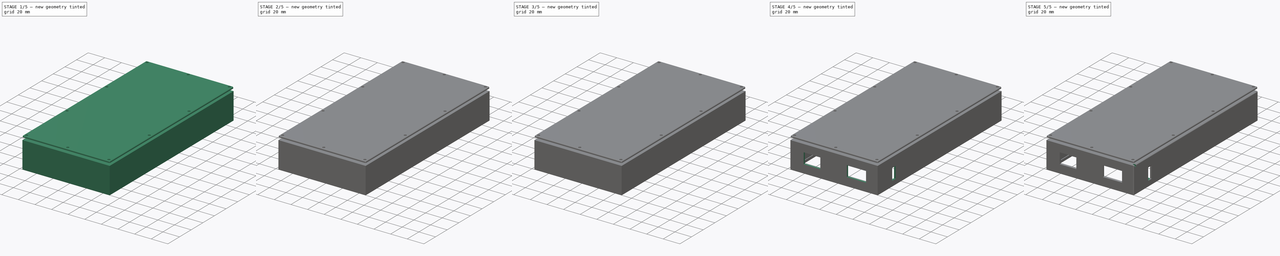
[diagram: build sequence overview — one tinted view per stage of 5, left to right]
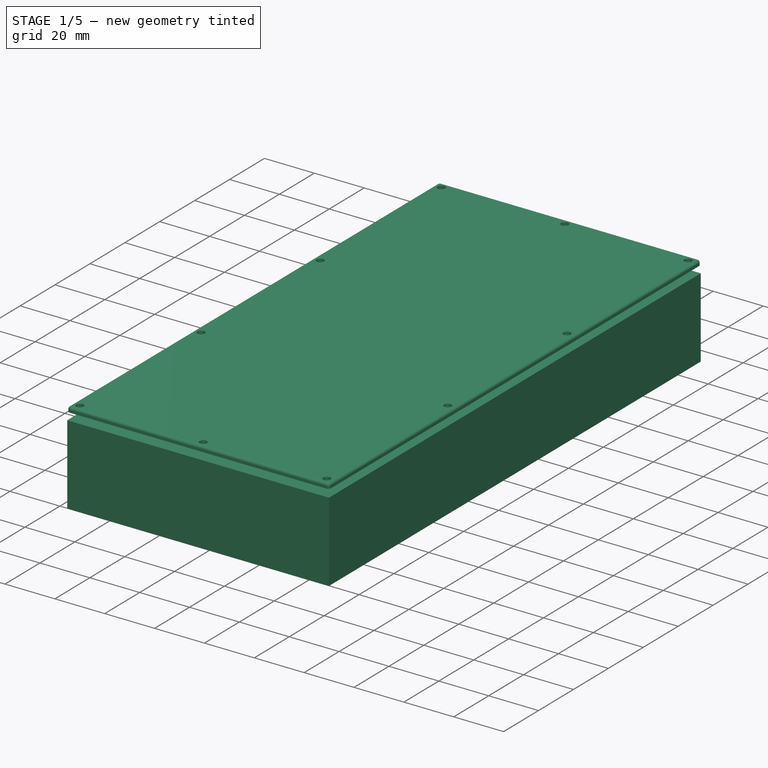
[diagram: stage 1 of 5 — iso view after this stage's code; geometry added in this stage tinted green]
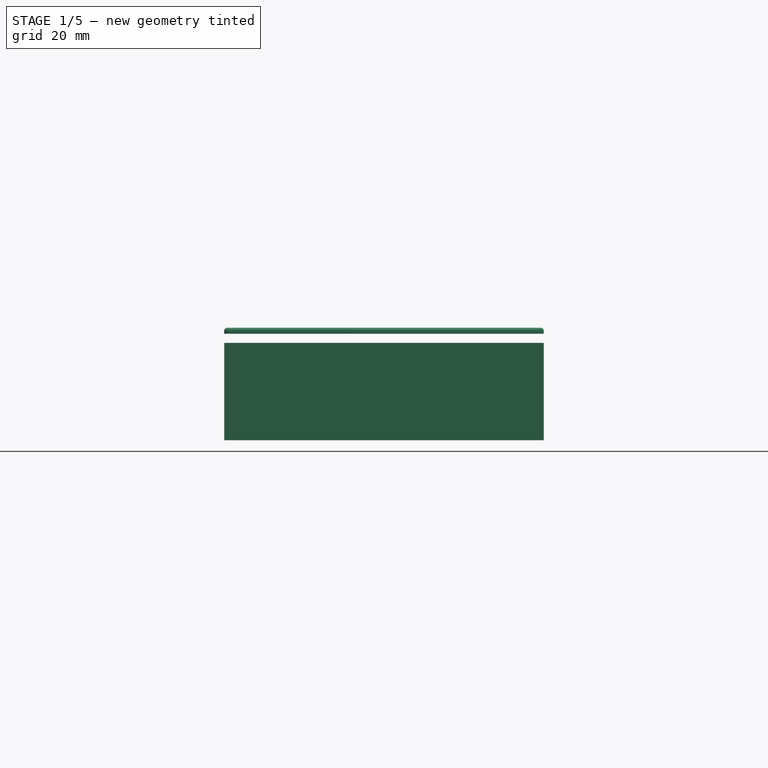
[diagram: stage 1 of 5 — front view after this stage's code; geometry added in this stage tinted green]
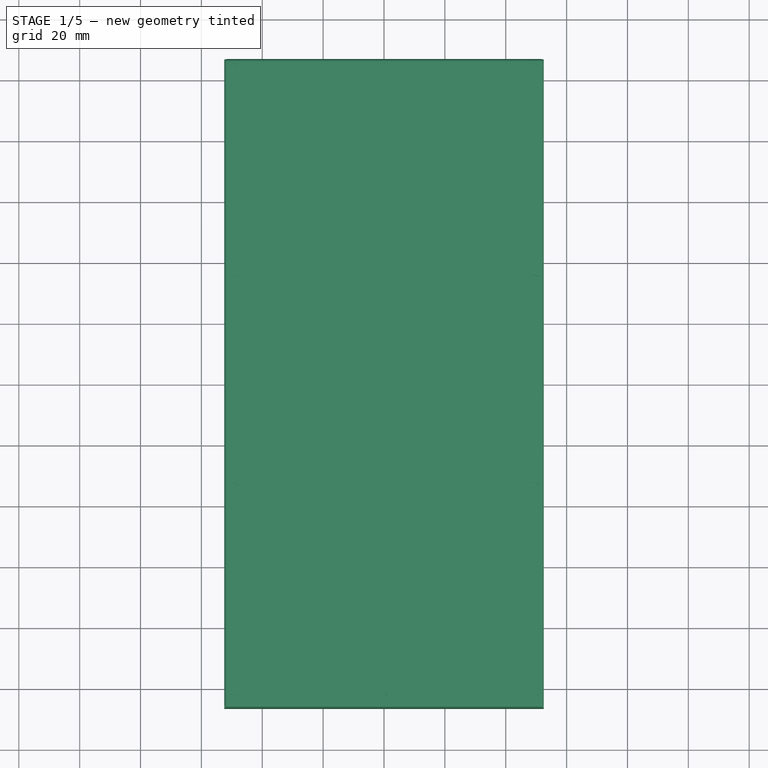
[diagram: stage 1 of 5 — top view after this stage's code; geometry added in this stage tinted green]
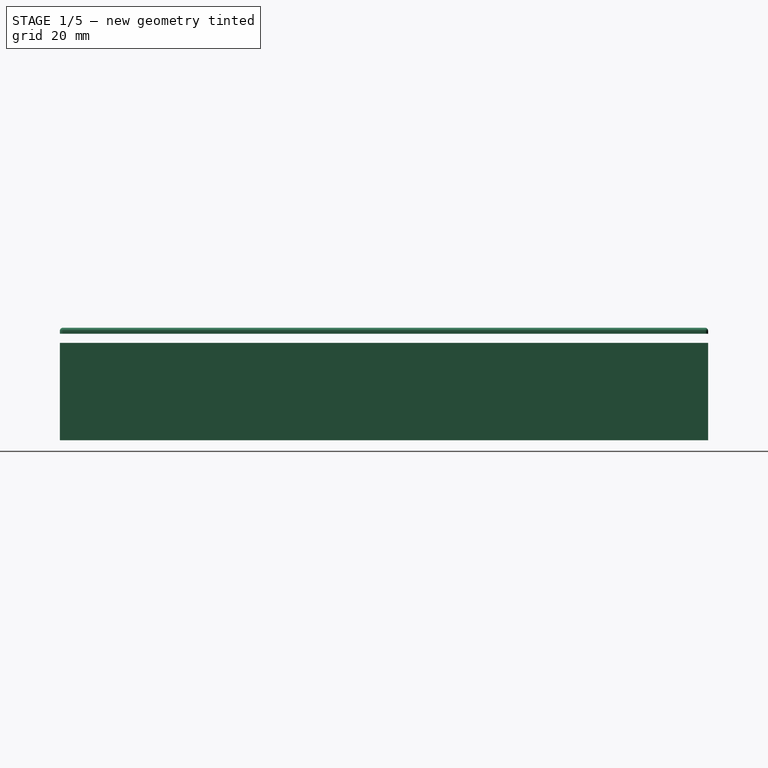
[diagram: stage 1 of 5 — right view after this stage's code; geometry added in this stage tinted green]
FCSTD DOCUMENT  (FreeCAD 1.0R39109 (Git))
Label: FIN 002
License: All rights reserved
LicenseURL: http://en.wikipedia.org/wiki/All_rights_reserved
objects: Sketcher::SketchObject×14, PartDesign::Pad×8, PartDesign::Fillet×7, PartDesign::Pocket×5, PartDesign::Mirrored×3, PartDesign::Body×3, App::Part×3, PartDesign::Hole×1
note: 100 computed .brp shape members not serialized (recipe doc carries the construction recipe); baked Part::Feature solids carry a one-line shape summary decoded from their .brp

FEATURE [Sketcher::SketchObject] Sketch
  ArcFitTolerance = 0
  AttachmentSupport = -> [XY_Plane]
  FullyConstrained = true
  MakeInternals = false
  MapMode = 5
  sketch-geometry (4):
    g0: LineSegment StartX=-52.5 StartY=106.5 StartZ=0 EndX=52.5 EndY=106.5 EndZ=0
    g1: LineSegment StartX=52.5 StartY=106.5 StartZ=0 EndX=52.5 EndY=-106.5 EndZ=0
    g2: LineSegment StartX=52.5 StartY=-106.5 StartZ=0 EndX=-52.5 EndY=-106.5 EndZ=0
    g3: LineSegment StartX=-52.5 StartY=-106.5 StartZ=0 EndX=-52.5 EndY=106.5 EndZ=0
  constraints (10):
    c: Coincident(g0,g1)
    c: Coincident(g1,g2)
    c: Coincident(g2,g3)
    c: Coincident(g3,g0)
    c: Horizontal(g2)
    c: Vertical(g3)
    c: Symmetric(g0,g0,g-2)
    c: Symmetric(g0,g1,g-1)
    c: DistanceX(g0,g0) = 105
    c: DistanceY(g3,g3) = 213
FEATURE [PartDesign::Pad] Pad
  AlongSketchNormal = false
  Direction = (0,0,1)
  Length = 32
  Length2 = 100
  Profile = -> Sketch
  Suppressed = false
  Type = 0
FEATURE [PartDesign::Body] Body
  AllowCompound = false
  Group = -> [Sketch,Pad,Sketch001,Sketch002,Pocket001,Sketch003,Pad001,Mirrored,Sketch004,Pad002,Mirrored001,Fillet,Fillet001,Fillet002,Sketch005,Pad003,Sketch006,Pocket002,Mirrored002,Fillet003,Sketch007,Pocket003,Sketch008,Pocket004,Sketch009,Pad004,Sketch010,Pad005,Fillet005,Sketch012,Pocket005,Hole]
  Origin = -> Origin001
  Tip = -> Hole
FEATURE [App::Part] Part  label="Main"
  Group = -> [Body]
  Origin = -> Origin
  Placement = pos=(-2.1e-15,0,35) rot=(0,1,0;3.14159rad)
FEATURE [Sketcher::SketchObject] Sketch013
  ArcFitTolerance = 0
  FullyConstrained = true
  MakeInternals = false
  MapMode = 5
  Placement = pos=(-4e-16,0,3) rot=(1,0,0;3.14159rad)
  sketch-geometry (8):
    g0: LineSegment StartX=-49.5 StartY=103.5 StartZ=0 EndX=49.5 EndY=103.5 EndZ=0
    g1: LineSegment StartX=49.5 StartY=103.5 StartZ=0 EndX=49.5 EndY=-103.5 EndZ=0
    g2: LineSegment StartX=49.5 StartY=-103.5 StartZ=0 EndX=-49.5 EndY=-103.5 EndZ=0
    g3: LineSegment StartX=-49.5 StartY=-103.5 StartZ=0 EndX=-49.5 EndY=103.5 EndZ=0
    g4: LineSegment StartX=-52.5 StartY=106.5 StartZ=0 EndX=52.5 EndY=106.5 EndZ=0
    g5: LineSegment StartX=52.5 StartY=106.5 StartZ=0 EndX=52.5 EndY=-106.5 EndZ=0
    g6: LineSegment StartX=52.5 StartY=-106.5 StartZ=0 EndX=-52.5 EndY=-106.5 EndZ=0
    g7: LineSegment StartX=-52.5 StartY=-106.5 StartZ=0 EndX=-52.5 EndY=106.5 EndZ=0
  constraints (20):
    c: Coincident(g0,g1)
    c: Coincident(g1,g2)
    c: Coincident(g2,g3)
    c: Coincident(g3,g0)
    c: Horizontal(g2)
    c: Vertical(g3)
    c: Symmetric(g0,g0,g-2)
    c: Symmetric(g0,g1,g-1)
    c: DistanceY(g0,g-3) = 3
    c: DistanceX(g0,g-4) = 3
    c: Coincident(g4,g5)
    c: Coincident(g5,g6)
    c: Coincident(g6,g7)
    c: Coincident(g7,g4)
    c: Horizontal(g6)
    c: Vertical(g7)
    c: Symmetric(g4,g4,g-2)
    c: Symmetric(g4,g5,g-1)
    c: PointOnObject(g-3,g4)
    c: PointOnObject(g-4,g5)
FEATURE [PartDesign::Pad] Pad007
  AlongSketchNormal = false
  Direction = (1e-16,0,-1)
  Length = 3
  Length2 = 100
  Profile = -> Sketch013
  Suppressed = false
  Type = 0
FEATURE [PartDesign::Fillet] Fillet006
  Base = -> Pad007 [Edge8,Edge10,Edge12,Edge7,Edge4,Edge2,Edge1,Edge5]
  BaseFeature = -> Pad007
  Radius = 1
  SupportTransform = false
  Suppressed = false
  UseAllEdges = false
FEATURE [PartDesign::Body] Body002
  AllowCompound = false
  Group = -> [Sketch013,Pad007,Fillet006]
  Origin = -> Origin005
  Tip = -> Fillet006
FEATURE [App::Part] Part002  label="solar cover "
  Group = -> [Body002]
  Origin = -> Origin004
  Placement = pos=(0,0,-16) rot=(0,0,1;0rad)
FEATURE [Sketcher::SketchObject] Sketch014
  ArcFitTolerance = 0
  FullyConstrained = true
  MakeInternals = false
  MapMode = 5
  Placement = pos=(-4.3e-15,0,35) rot=(0,0,1;0rad)
  sketch-geometry (14):
    g0: LineSegment StartX=-52.5 StartY=106.5 StartZ=0 EndX=52.5 EndY=106.5 EndZ=0
    g1: LineSegment StartX=52.5 StartY=106.5 StartZ=0 EndX=52.5 EndY=-106.5 EndZ=0
    g2: LineSegment StartX=52.5 StartY=-106.5 StartZ=0 EndX=-52.5 EndY=-106.5 EndZ=0
    g3: LineSegment StartX=-52.5 StartY=-106.5 StartZ=0 EndX=-52.5 EndY=106.5 EndZ=0
    g4: Circle CenterX=-49.5 CenterY=103.5 CenterZ=0 NormalX=0 NormalY=0 NormalZ=1 AngleXU=0 Radius=1.45
    g5: Circle CenterX=2.2e-15 CenterY=103.5 CenterZ=0 NormalX=0 NormalY=0 NormalZ=1 AngleXU=0 Radius=1.45
    g6: Circle CenterX=49.5 CenterY=103.5 CenterZ=0 NormalX=0 NormalY=0 NormalZ=1 AngleXU=0 Radius=1.45
    g7: Circle CenterX=49.5 CenterY=34.1667 CenterZ=0 NormalX=0 NormalY=0 NormalZ=1 AngleXU=0 Radius=1.45
    g8: Circle CenterX=-49.5 CenterY=34.1667 CenterZ=0 NormalX=0 NormalY=0 NormalZ=1 AngleXU=0 Radius=1.45
    g9: Circle CenterX=-49.5 CenterY=-34.1667 CenterZ=0 NormalX=0 NormalY=0 NormalZ=1 AngleXU=0 Radius=1.45
    g10: Circle CenterX=49.5 CenterY=-34.1667 CenterZ=0 NormalX=0 NormalY=0 NormalZ=1 AngleXU=0 Radius=1.45
    g11: Circle CenterX=-49.5 CenterY=-103.5 CenterZ=0 NormalX=0 NormalY=0 NormalZ=1 AngleXU=0 Radius=1.45
    g12: Circle CenterX=2.2e-15 CenterY=-103.5 CenterZ=0 NormalX=0 NormalY=0 NormalZ=1 AngleXU=0 Radius=1.45
    g13: Circle CenterX=49.5 CenterY=-103.5 CenterZ=0 NormalX=0 NormalY=0 NormalZ=1 AngleXU=0 Radius=1.45
  constraints (32):
    c: Coincident(g0,g1)
    c: Coincident(g1,g2)
    c: Coincident(g2,g3)
    c: Coincident(g3,g0)
    c: Horizontal(g0)
    c: Horizontal(g2)
    c: Vertical(g1)
    c: Vertical(g3)
    c: PointOnObject(g-3,g0)
    c: PointOnObject(g-4,g3)
    c: PointOnObject(g-5,g1)
    c: PointOnObject(g-6,g2)
    c: Coincident(g4,g-7)
    c: Coincident(g5,g-9)
    c: Coincident(g6,g-8)
    c: Coincident(g7,g-11)
    c: Coincident(g8,g-10)
    c: Coincident(g9,g-12)
    c: Coincident(g10,g-13)
    c: Coincident(g11,g-14)
    c: Coincident(g12,g-15)
    c: Coincident(g13,g-16)
    c: Equal(g11,g12)
    c: Equal(g12,g13)
    c: Equal(g13,g10)
    c: Equal(g10,g9)
    c: Equal(g9,g8)
    c: Equal(g8,g7)
    c: Equal(g7,g6)
    c: Equal(g6,g5)
    c: Equal(g5,g4)
    c: Radius(g4) = 1.45
FEATURE [PartDesign::Pad] Pad008
  AlongSketchNormal = false
  Direction = (-1e-16,0,1)
  Length = 2
  Length2 = 100
  Profile = -> Sketch014
  Suppressed = false
  Type = 0
FEATURE [PartDesign::Fillet] Fillet007
  Base = -> Pad008 [Edge2,Edge1,Edge5,Edge8,Edge7,Edge4,Edge12,Edge10]
  BaseFeature = -> Pad008
  Radius = 1
  SupportTransform = false
  Suppressed = false
  UseAllEdges = false
FEATURE [PartDesign::Body] Body003
  AllowCompound = false
  Group = -> [Sketch014,Pad008,Fillet007]
  Origin = -> Origin007
  Tip = -> Fillet007
FEATURE [App::Part] Part003  label="main cover "
  Group = -> [Body003]
  Origin = -> Origin006
  Placement = pos=(0,0,35) rot=(0,0,1;0rad)
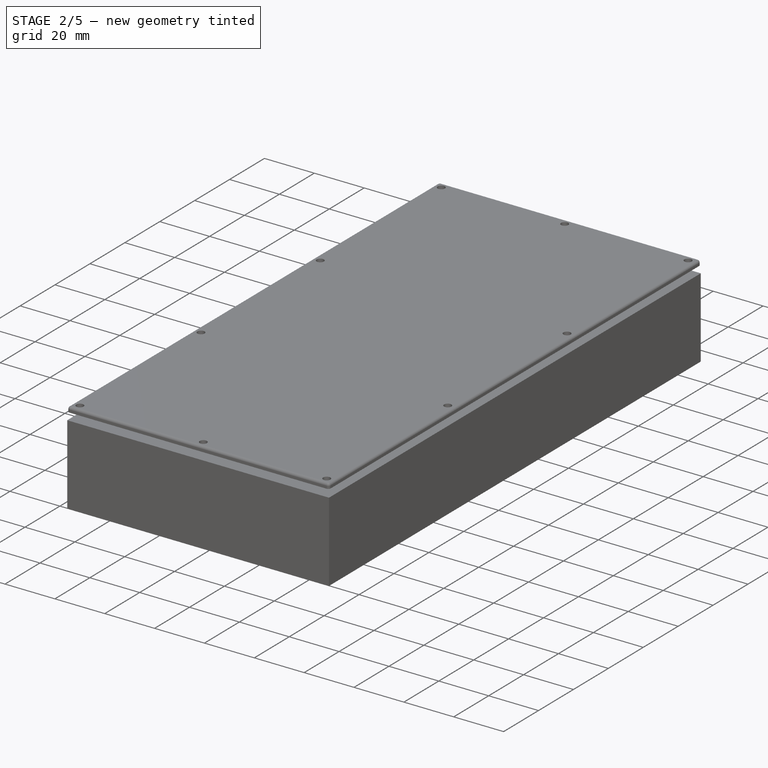
[diagram: stage 2 of 5 — iso view after this stage's code; geometry added in this stage tinted green]
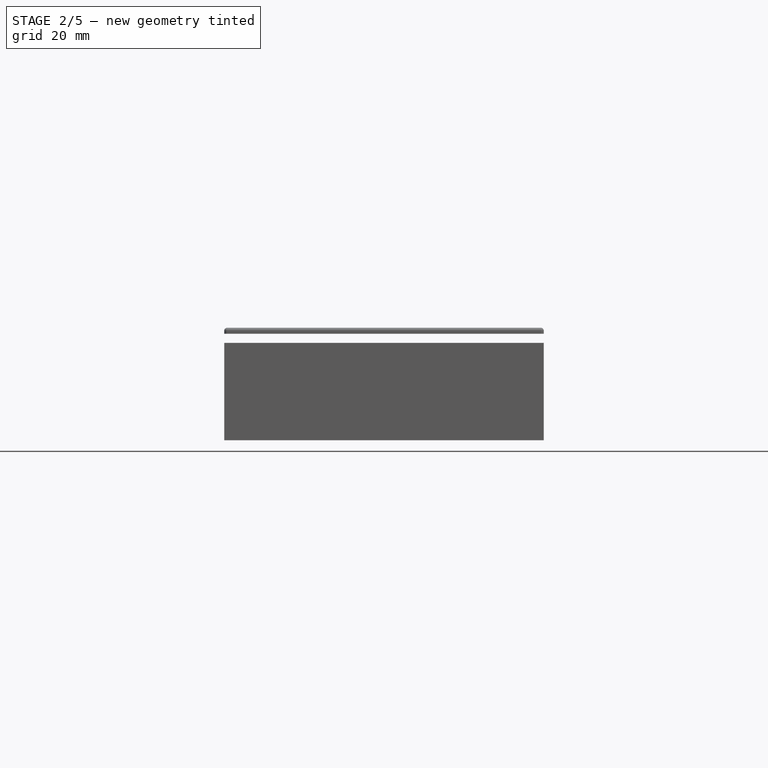
[diagram: stage 2 of 5 — front view after this stage's code; geometry added in this stage tinted green]
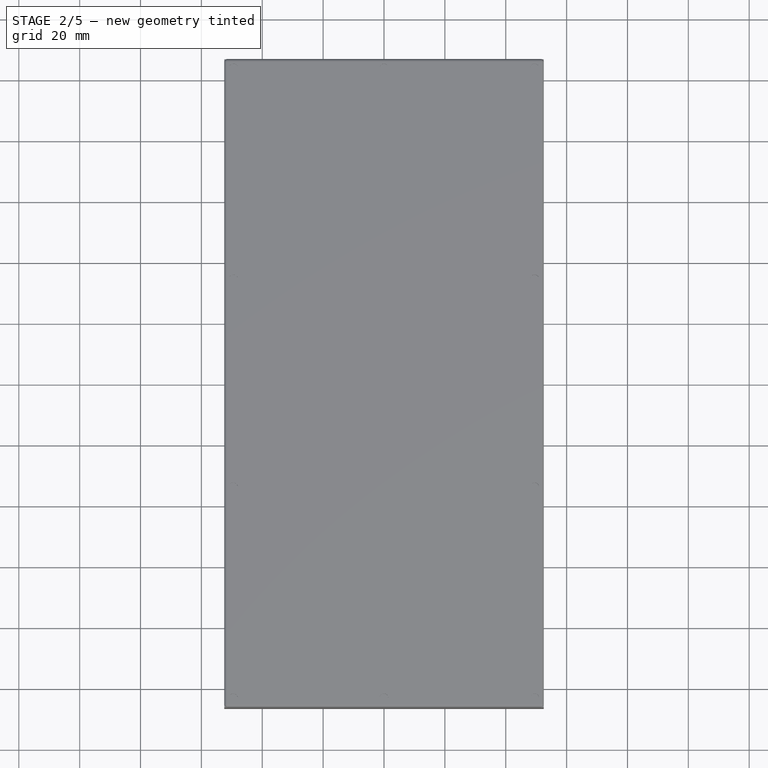
[diagram: stage 2 of 5 — top view after this stage's code; geometry added in this stage tinted green]
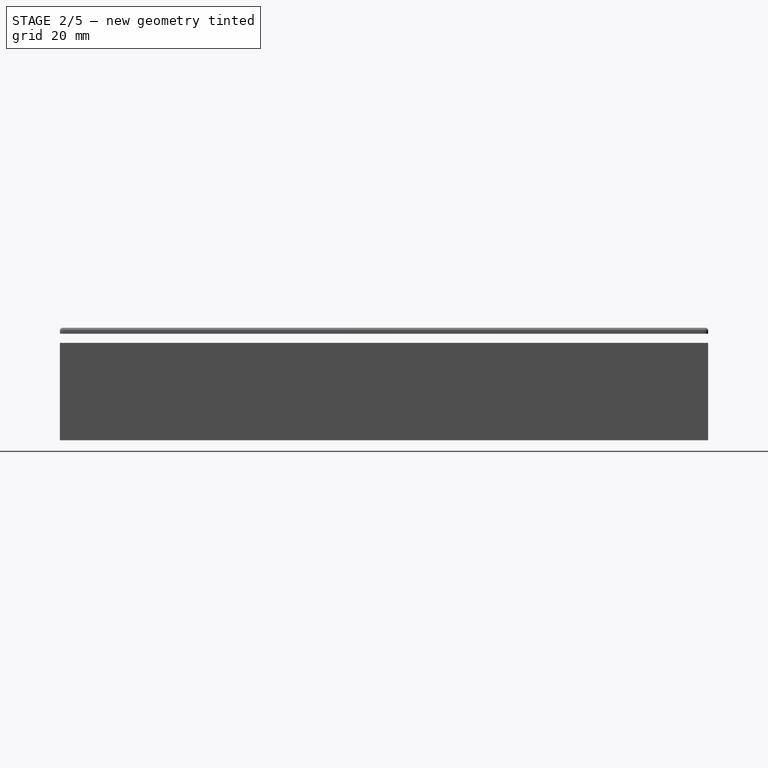
[diagram: stage 2 of 5 — right view after this stage's code; geometry added in this stage tinted green]
FEATURE [Sketcher::SketchObject] Sketch001
  ArcFitTolerance = 0
  AttachmentSupport = -> [Pad]
  ExternalGeometry = -> [Pad]
  FullyConstrained = true
  MakeInternals = false
  MapMode = 5
  Placement = pos=(0,0,32) rot=(0,0,1;0rad)
  sketch-geometry (4):
    g0: LineSegment StartX=-49.5 StartY=103.5 StartZ=0 EndX=49.5 EndY=103.5 EndZ=0
    g1: LineSegment StartX=49.5 StartY=103.5 StartZ=0 EndX=49.5 EndY=-103.5 EndZ=0
    g2: LineSegment StartX=49.5 StartY=-103.5 StartZ=0 EndX=-49.5 EndY=-103.5 EndZ=0
    g3: LineSegment StartX=-49.5 StartY=-103.5 StartZ=0 EndX=-49.5 EndY=103.5 EndZ=0
  constraints (10):
    c: Coincident(g0,g1)
    c: Coincident(g1,g2)
    c: Coincident(g2,g3)
    c: Coincident(g3,g0)
    c: Horizontal(g2)
    c: Vertical(g3)
    c: Symmetric(g0,g0,g-2)
    c: Symmetric(g0,g1,g-1)
    c: DistanceY(g0,g-4) = 3
    c: DistanceX(g0,g-4) = 3
FEATURE [Sketcher::SketchObject] Sketch002
  ArcFitTolerance = 0
  FullyConstrained = true
  MakeInternals = false
  MapMode = 5
  Placement = pos=(0,0,0) rot=(1,0,0;3.14159rad)
  sketch-geometry (4):
    g0: LineSegment StartX=-50.5 StartY=104.5 StartZ=0 EndX=50.5 EndY=104.5 EndZ=0
    g1: LineSegment StartX=50.5 StartY=104.5 StartZ=0 EndX=50.5 EndY=-104.5 EndZ=0
    g2: LineSegment StartX=50.5 StartY=-104.5 StartZ=0 EndX=-50.5 EndY=-104.5 EndZ=0
    g3: LineSegment StartX=-50.5 StartY=-104.5 StartZ=0 EndX=-50.5 EndY=104.5 EndZ=0
  constraints (10):
    c: Coincident(g0,g1)
    c: Coincident(g1,g2)
    c: Coincident(g2,g3)
    c: Coincident(g3,g0)
    c: Horizontal(g2)
    c: Vertical(g3)
    c: Symmetric(g0,g0,g-2)
    c: Symmetric(g0,g1,g-1)
    c: DistanceY(g-1,g0) = 104.5
    c: DistanceX(g-1,g0) = 50.5
FEATURE [PartDesign::Pocket] Pocket001
  BaseFeature = -> Pad
  Direction = (1,1,1)
  Length = 30
  Length2 = 100
  Profile = -> Sketch002
  Suppressed = false
  Type = 0
FEATURE [Sketcher::SketchObject] Sketch003
  ArcFitTolerance = 0
  AttachmentSupport = -> [Pocket001]
  ExternalGeometry = -> [Pocket001]
  FullyConstrained = false
  MakeInternals = false
  MapMode = 5
  Placement = pos=(0,0,30) rot=(1,0,0;3.14159rad)
  sketch-geometry (14):
    g0: Circle CenterX=-49.5 CenterY=103.5 CenterZ=0 NormalX=0 NormalY=0 NormalZ=1 AngleXU=0 Radius=2.5
    g1: Circle CenterX=-49.5 CenterY=34.1667 CenterZ=0 NormalX=0 NormalY=0 NormalZ=1 AngleXU=0 Radius=2.5
    g2: Circle CenterX=49.5 CenterY=103.5 CenterZ=0 NormalX=0 NormalY=0 NormalZ=1 AngleXU=0 Radius=2.5
    g3: Circle CenterX=49.5 CenterY=34.1667 CenterZ=0 NormalX=0 NormalY=0 NormalZ=1 AngleXU=0 Radius=2.5
    g4: GeomPoint [constr] X=-49.5 Y=-35.1667 Z=0
    g5: GeomPoint [constr] X=50.5 Y=-43.4142 Z=0
    g6: LineSegment [constr] StartX=-49.5 StartY=103.5 StartZ=0 EndX=-49.5 EndY=34.1667 EndZ=0
    g7: LineSegment [constr] StartX=-49.5 StartY=34.1667 StartZ=0 EndX=-49.5 EndY=-35.1667 EndZ=0
    g8: LineSegment [constr] StartX=-49.5 StartY=-35.1667 StartZ=0 EndX=-49.5 EndY=-104.5 EndZ=0
    g9: LineSegment [constr] StartX=49.5 StartY=103.5 StartZ=0 EndX=49.5 EndY=34.1667 EndZ=0
    g10: LineSegment [constr] StartX=49.5 StartY=34.1667 StartZ=0 EndX=49.5 EndY=-35.1667 EndZ=0
    g11: LineSegment [constr] StartX=49.5 StartY=-35.1667 StartZ=0 EndX=49.5 EndY=-104.5 EndZ=0
    g12: LineSegment [constr] StartX=-49.5 StartY=103.5 StartZ=0 EndX=49.5 EndY=103.5 EndZ=0
    g13: Circle CenterX=0 CenterY=103.5 CenterZ=0 NormalX=0 NormalY=0 NormalZ=1 AngleXU=0 Radius=2.5
  constraints (34):
    c: PointOnObject(g5,g-4)
    c: Coincident(g6,g0)
    c: Coincident(g6,g1)
    c: Coincident(g7,g4)
    c: Coincident(g8,g4)
    c: Equal(g6,g7)
    c: Equal(g7,g8)
    c: Horizontal(g1,g3)
    c: Coincident(g7,g1)
    c: Radius(g0) = 2.5
    c: PointOnObject(g8,g-6)
    c: Vertical(g8)
    c: Vertical(g7)
    c: Vertical(g6)
    c: Vertical(g9)
    c: Coincident(g9,g10)
    c: Vertical(g10)
    c: Coincident(g10,g11)
    c: PointOnObject(g11,g-6)
    c: Vertical(g11)
    c: Equal(g9,g10)
    c: Coincident(g2,g9)
    c: Coincident(g3,g9)
    c: Coincident(g12,g0)
    c: Coincident(g12,g2)
    c: Horizontal(g12)
    c: Symmetric(g0,g2,g13)
    c: Equal(g0,g13)
    c: Equal(g13,g2)
    c: Equal(g2,g3)
    c: Equal(g3,g1)
    c: PointOnObject(g13,g-2)
    c: DistanceY(g2,g-4) = 1
    c: DistanceX(g-5,g0) = 1
FEATURE [PartDesign::Pad] Pad001
  BaseFeature = -> Pocket001
  Direction = (0,0,-1)
  Length = 10
  Length2 = 100
  Profile = -> Sketch003
  Suppressed = false
  Type = 3
  UpToFace = -> Pocket001 [Face4]
FEATURE [PartDesign::Mirrored] Mirrored
  BaseFeature = -> Pad001
  MirrorPlane = -> XZ_Plane
  Refine = true
  Suppressed = false
  TransformMode = 0
FEATURE [Sketcher::SketchObject] Sketch004
  ArcFitTolerance = 0
  FullyConstrained = true
  MakeInternals = false
  MapMode = 5
  Placement = pos=(0,0,30) rot=(1,0,0;3.14159rad)
  sketch-geometry (8):
    g0: LineSegment [constr] StartX=-34 StartY=21 StartZ=0 EndX=34 EndY=21 EndZ=0
    g1: LineSegment [constr] StartX=34 StartY=21 StartZ=0 EndX=34 EndY=-99 EndZ=0
    g2: LineSegment [constr] StartX=34 StartY=-99 StartZ=0 EndX=-34 EndY=-99 EndZ=0
    g3: LineSegment [constr] StartX=-34 StartY=-99 StartZ=0 EndX=-34 EndY=21 EndZ=0
    g4: LineSegment StartX=-34 StartY=-99 StartZ=0 EndX=-36 EndY=-99 EndZ=0
    g5: LineSegment StartX=-36 StartY=-99 StartZ=0 EndX=-36 EndY=21 EndZ=0
    g6: LineSegment StartX=-36 StartY=21 StartZ=0 EndX=-34 EndY=21 EndZ=0
    g7: LineSegment StartX=-34 StartY=21 StartZ=0 EndX=-34 EndY=-99 EndZ=0
  constraints (22):
    c: Coincident(g0,g1)
    c: Coincident(g1,g2)
    c: Coincident(g2,g3)
    c: Coincident(g3,g0)
    c: Horizontal(g2)
    c: Vertical(g1)
    c: Vertical(g3)
    c: Symmetric(g0,g0,g-2)
    c: DistanceX(g2,g2) = 68
    c: DistanceY(g3,g3) = 120
    c: Coincident(g4,g5)
    c: Coincident(g5,g6)
    c: Coincident(g6,g7)
    c: Coincident(g7,g4)
    c: Horizontal(g4)
    c: Horizontal(g6)
    c: Vertical(g5)
    c: Vertical(g7)
    c: PointOnObject(g4,g2)
    c: Coincident(g6,g0)
    c: DistanceX(g4,g4) = 2
    c: DistanceY(g4,g-1) = 99
FEATURE [PartDesign::Pad] Pad002
  BaseFeature = -> Mirrored
  Direction = (0,0,-1)
  Length = 20
  Length2 = 100
  Profile = -> Sketch004
  Suppressed = false
  Type = 0
FEATURE [PartDesign::Mirrored] Mirrored001
  BaseFeature = -> Pad002
  MirrorPlane = -> Sketch004 [V_Axis]
  Originals = -> [Pad002]
  Suppressed = false
  TransformMode = 0
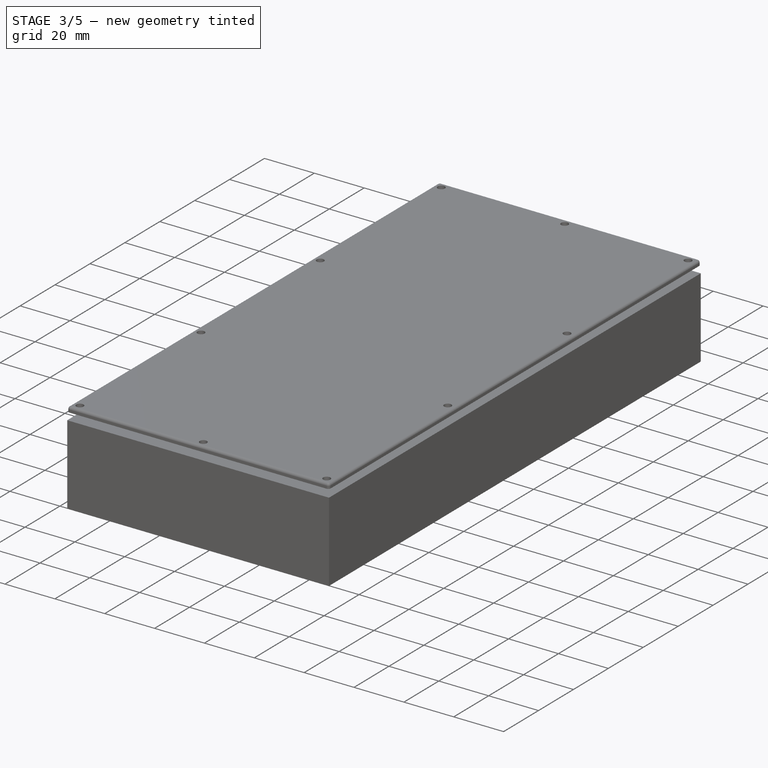
[diagram: stage 3 of 5 — iso view after this stage's code; geometry added in this stage tinted green]
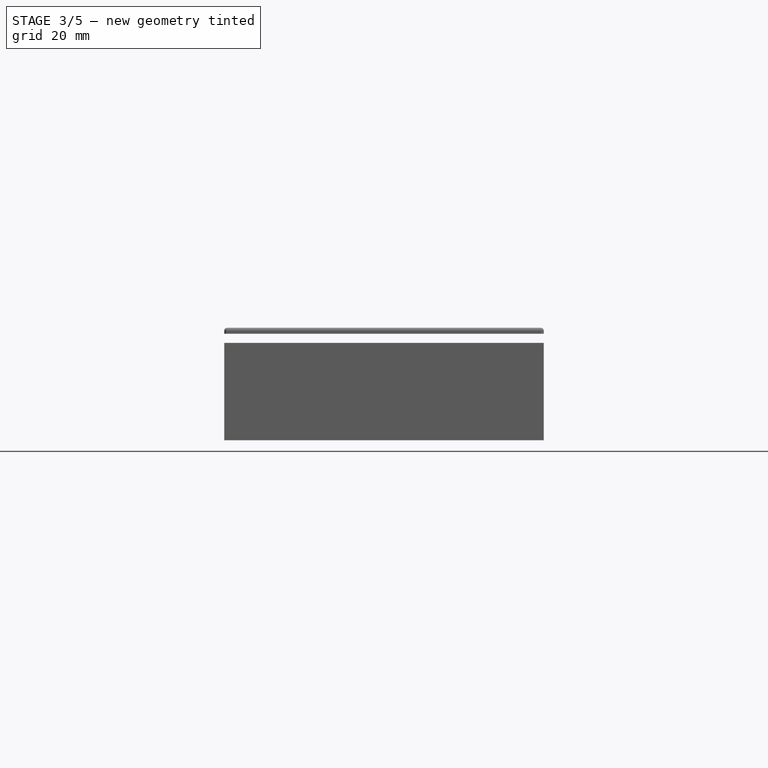
[diagram: stage 3 of 5 — front view after this stage's code; geometry added in this stage tinted green]
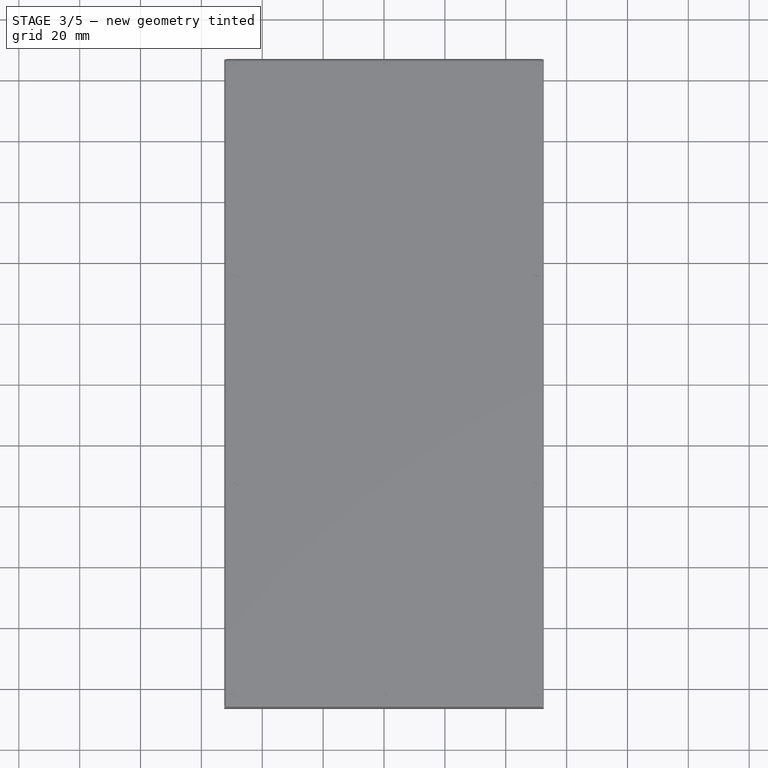
[diagram: stage 3 of 5 — top view after this stage's code; geometry added in this stage tinted green]
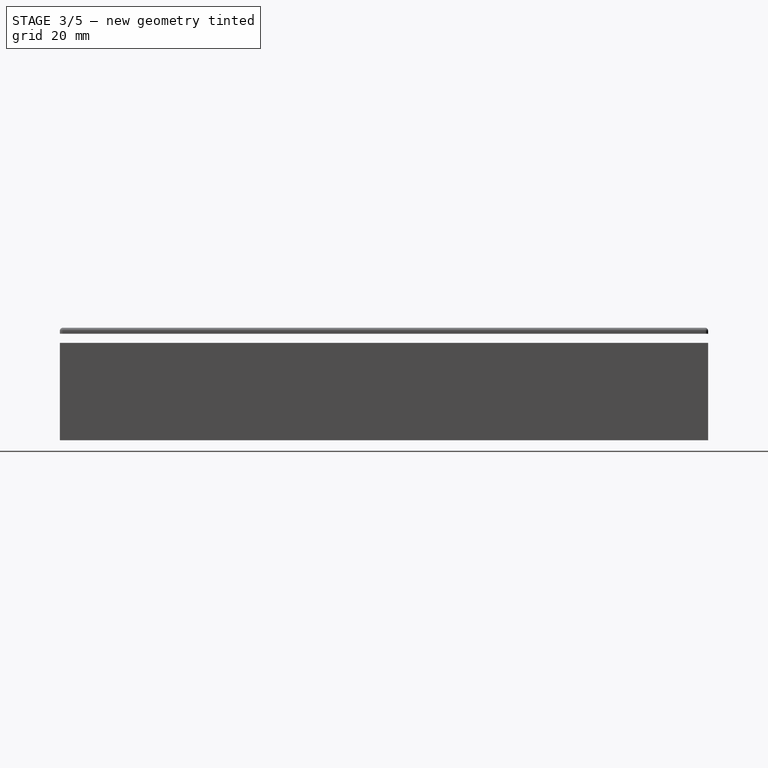
[diagram: stage 3 of 5 — right view after this stage's code; geometry added in this stage tinted green]
FEATURE [PartDesign::Fillet] Fillet
  Base = -> Mirrored001 [Edge90,Edge88,Edge91,Edge93,Edge94,Edge95]
  BaseFeature = -> Mirrored001
  Radius = 3
  SupportTransform = false
  Suppressed = false
  UseAllEdges = false
FEATURE [PartDesign::Fillet] Fillet001
  Base = -> Fillet [Edge100]
  BaseFeature = -> Fillet
  Radius = 1
  SupportTransform = false
  Suppressed = false
  UseAllEdges = false
FEATURE [PartDesign::Fillet] Fillet002
  Base = -> Fillet001 [Edge59]
  BaseFeature = -> Fillet001
  Radius = 1
  SupportTransform = false
  Suppressed = false
  UseAllEdges = false
FEATURE [Sketcher::SketchObject] Sketch005
  ArcFitTolerance = 0
  AttachmentSupport = -> [Fillet002]
  ExternalGeometry = -> [Fillet002]
  FullyConstrained = true
  MakeInternals = false
  MapMode = 5
  Placement = pos=(0,0,30) rot=(1,0,0;3.14159rad)
  sketch-geometry (12):
    g0: LineSegment StartX=-15 StartY=-79.5 StartZ=0 EndX=15 EndY=-79.5 EndZ=0
    g1: LineSegment StartX=15 StartY=-79.5 StartZ=0 EndX=15 EndY=-77.5 EndZ=0
    g2: LineSegment StartX=15 StartY=-77.5 StartZ=0 EndX=-15 EndY=-77.5 EndZ=0
    g3: LineSegment StartX=-15 StartY=-77.5 StartZ=0 EndX=-15 EndY=-79.5 EndZ=0
    g4: LineSegment StartX=-15 StartY=-39.5 StartZ=0 EndX=15 EndY=-39.5 EndZ=0
    g5: LineSegment StartX=15 StartY=-39.5 StartZ=0 EndX=15 EndY=-41.5 EndZ=0
    g6: LineSegment StartX=15 StartY=-41.5 StartZ=0 EndX=-15 EndY=-41.5 EndZ=0
    g7: LineSegment StartX=-15 StartY=-41.5 StartZ=0 EndX=-15 EndY=-39.5 EndZ=0
    g8: LineSegment StartX=-15 StartY=0.5 StartZ=0 EndX=15 EndY=0.5 EndZ=0
    g9: LineSegment StartX=15 StartY=0.5 StartZ=0 EndX=15 EndY=-1.5 EndZ=0
    g10: LineSegment StartX=15 StartY=-1.5 StartZ=0 EndX=-15 EndY=-1.5 EndZ=0
    g11: LineSegment StartX=-15 StartY=-1.5 StartZ=0 EndX=-15 EndY=0.5 EndZ=0
  constraints (35):
    c: Coincident(g0,g1)
    c: Coincident(g1,g2)
    c: Coincident(g2,g3)
    c: Coincident(g3,g0)
    c: Horizontal(g0)
    c: Horizontal(g2)
    c: Vertical(g1)
    c: Vertical(g3)
    c: Coincident(g4,g5)
    c: Coincident(g5,g6)
    c: Coincident(g6,g7)
    c: Coincident(g7,g4)
    c: Horizontal(g4)
    c: Horizontal(g6)
    c: Vertical(g5)
    c: Vertical(g7)
    c: Coincident(g8,g9)
    c: Coincident(g9,g10)
    c: Coincident(g10,g11)
    c: Coincident(g11,g8)
    c: Horizontal(g8)
    c: Vertical(g9)
    c: Vertical(g11)
    c: Equal(g3,g7)
    c: Equal(g7,g11)
    c: Equal(g2,g6)
    c: Equal(g6,g10)
    c: Vertical(g2,g6)
    c: Vertical(g6,g10)
    c: Symmetric(g10,g9,g-2)
    c: DistanceX(g10,g10) = 30
    c: DistanceY(g3,g3) = 2
    c: DistanceY(g-3,g0) = 25
    c: DistanceY(g-3,g4) = 65
    c: DistanceY(g-3,g8) = 105
FEATURE [PartDesign::Pad] Pad003
  AlongSketchNormal = false
  BaseFeature = -> Fillet002
  Direction = (0,0,-1)
  Length = 7
  Length2 = 100
  Profile = -> Sketch005
  Suppressed = false
  Type = 0
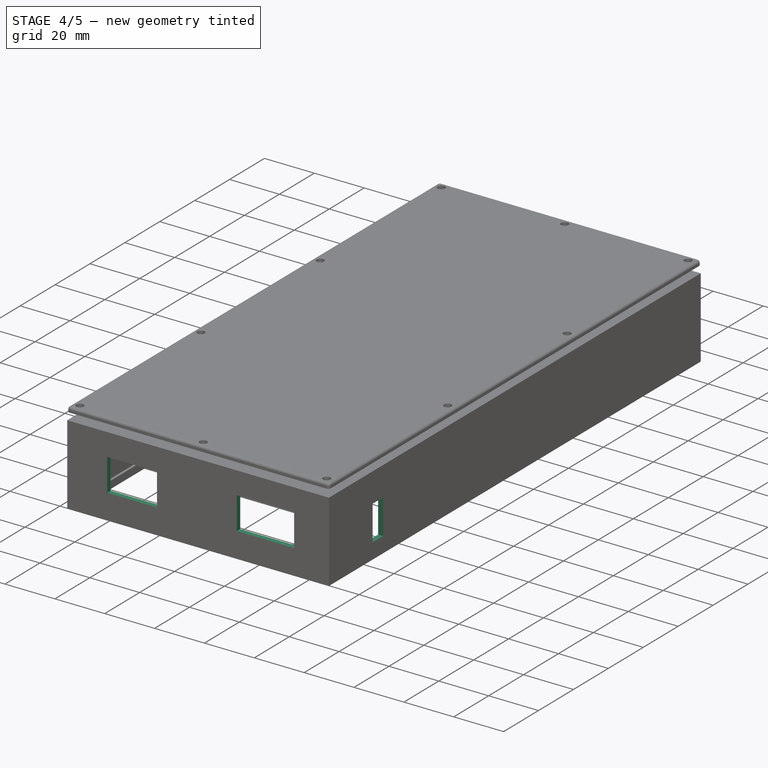
[diagram: stage 4 of 5 — iso view after this stage's code; geometry added in this stage tinted green]
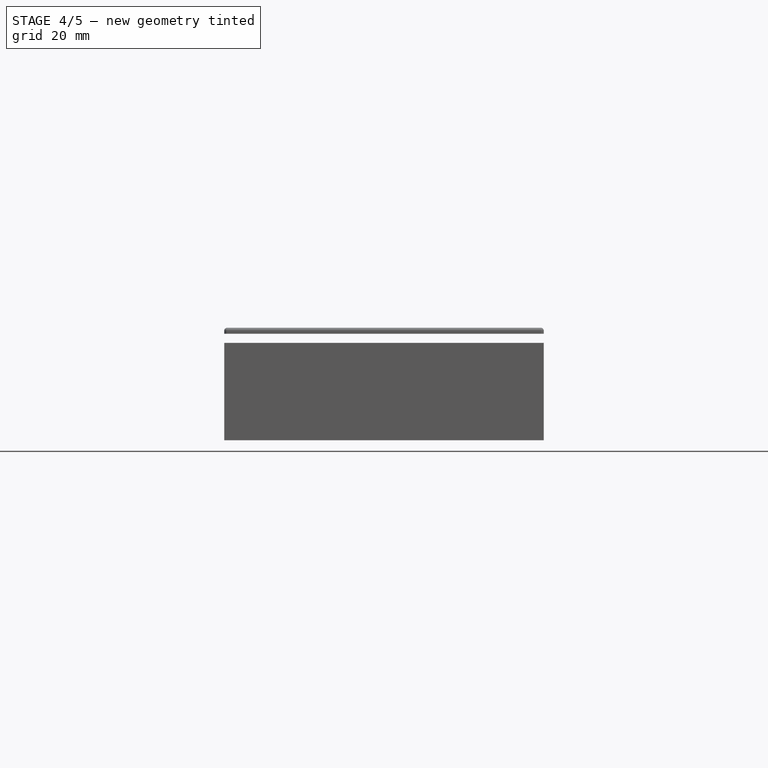
[diagram: stage 4 of 5 — front view after this stage's code; geometry added in this stage tinted green]
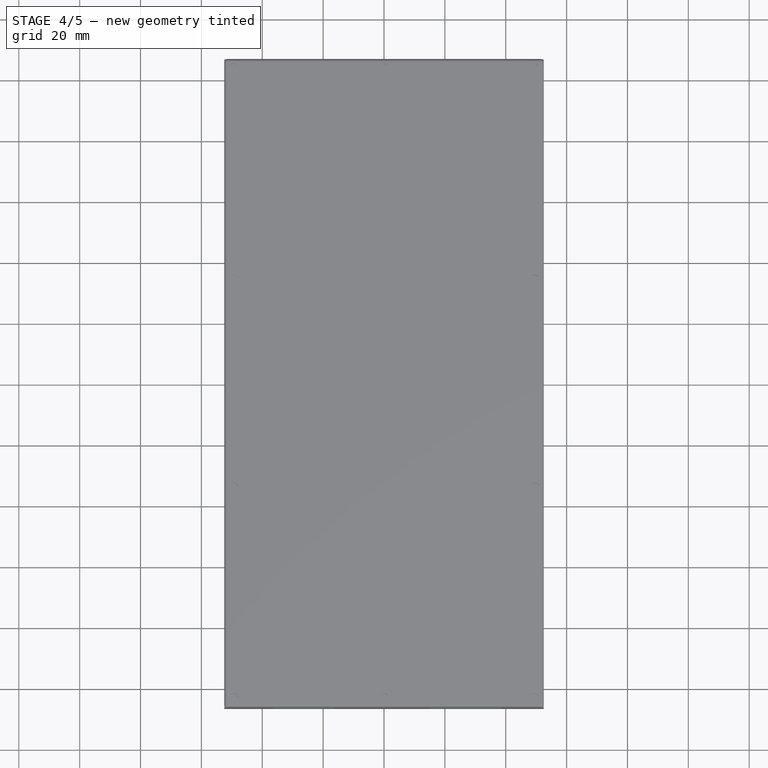
[diagram: stage 4 of 5 — top view after this stage's code; geometry added in this stage tinted green]
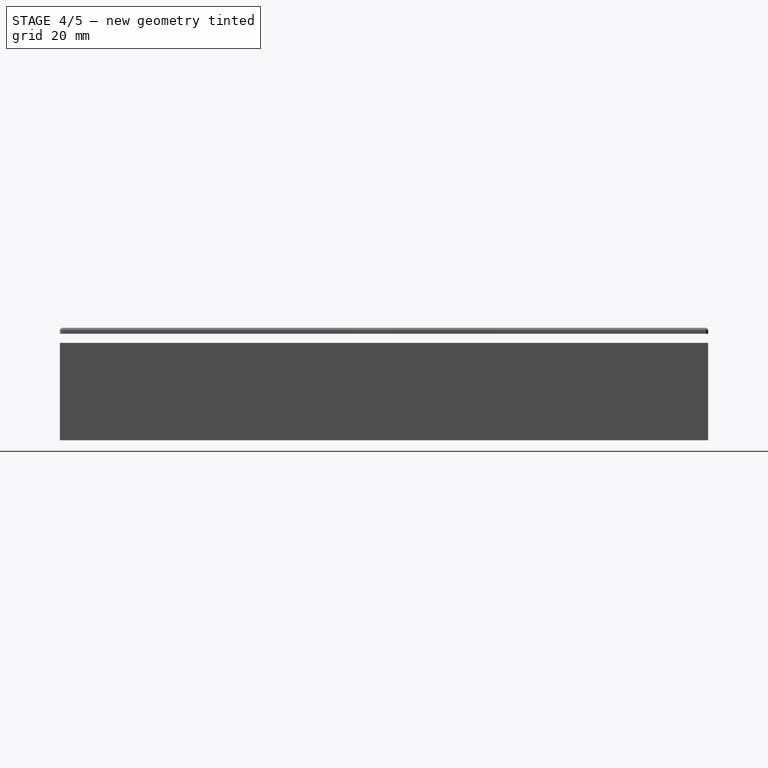
[diagram: stage 4 of 5 — right view after this stage's code; geometry added in this stage tinted green]
FEATURE [Sketcher::SketchObject] Sketch006
  ArcFitTolerance = 0
  AttachmentSupport = -> [Pad003]
  ExternalGeometry = -> [Pad003]
  FullyConstrained = true
  MakeInternals = false
  MapMode = 5
  Placement = pos=(0,-0.5,0) rot=(1,0,0;1.5708rad)
  sketch-geometry (4):
    g0: ArcOfCircle CenterX=10 CenterY=29.2 CenterZ=0 NormalX=0 NormalY=0 NormalZ=1 AngleXU=0 Radius=0.75 StartAngle=4.71239 EndAngle=7.85398
    g1: ArcOfCircle CenterX=5 CenterY=29.2 CenterZ=0 NormalX=0 NormalY=0 NormalZ=1 AngleXU=0 Radius=0.75 StartAngle=1.5708 EndAngle=4.71239
    g2: LineSegment StartX=10 StartY=29.95 StartZ=0 EndX=5 EndY=29.95 EndZ=0
    g3: LineSegment StartX=5 StartY=28.45 StartZ=0 EndX=10 EndY=28.45 EndZ=0
  constraints (10):
    c: Tangent(g0,g2) = -1.5708
    c: Tangent(g2,g1) = -1.5708
    c: Tangent(g1,g3) = -1.5708
    c: Tangent(g3,g0) = -1.5708
    c: Equal(g0,g1)
    c: DistanceX(g1,g0) = 5
    c: Horizontal(g1,g0)
    c: Radius(g0) = 0.75
    c: DistanceX(g0,g-6) = 5
    c: DistanceY(g0,g-6) = 0.8
FEATURE [PartDesign::Pocket] Pocket002
  BaseFeature = -> Pad003
  Direction = (1,1,1)
  Length = 90
  Length2 = 100
  Profile = -> Sketch006
  Suppressed = false
  Type = 0
FEATURE [PartDesign::Mirrored] Mirrored002
  BaseFeature = -> Pocket002
  MirrorPlane = -> Sketch006 [V_Axis]
  Originals = -> [Pocket002]
  Suppressed = false
  TransformMode = 0
FEATURE [PartDesign::Fillet] Fillet003
  Base = -> Mirrored002 [Edge154,Edge130,Edge190,Edge178,Edge165,Edge141]
  BaseFeature = -> Mirrored002
  Radius = 5
  SupportTransform = false
  Suppressed = false
  UseAllEdges = false
FEATURE [Sketcher::SketchObject] Sketch007
  ArcFitTolerance = 0
  AttachmentSupport = -> [Fillet003]
  ExternalGeometry = -> [Fillet003]
  FullyConstrained = true
  MakeInternals = false
  MapMode = 5
  Placement = pos=(0,-106.5,0) rot=(1,0,0;1.5708rad)
  sketch-geometry (8):
    g0: LineSegment StartX=-36.5 StartY=23 StartZ=0 EndX=-16.5 EndY=23 EndZ=0
    g1: LineSegment StartX=-16.5 StartY=23 StartZ=0 EndX=-16.5 EndY=10 EndZ=0
    g2: LineSegment StartX=-16.5 StartY=10 StartZ=0 EndX=-36.5 EndY=10 EndZ=0
    g3: LineSegment StartX=-36.5 StartY=10 StartZ=0 EndX=-36.5 EndY=23 EndZ=0
    g4: LineSegment StartX=15.5 StartY=23 StartZ=0 EndX=38.5 EndY=23 EndZ=0
    g5: LineSegment StartX=38.5 StartY=23 StartZ=0 EndX=38.5 EndY=10 EndZ=0
    g6: LineSegment StartX=38.5 StartY=10 StartZ=0 EndX=15.5 EndY=10 EndZ=0
    g7: LineSegment StartX=15.5 StartY=10 StartZ=0 EndX=15.5 EndY=23 EndZ=0
  constraints (24):
    c: Coincident(g0,g1)
    c: Coincident(g1,g2)
    c: Coincident(g2,g3)
    c: Coincident(g3,g0)
    c: Horizontal(g0)
    c: Horizontal(g2)
    c: Vertical(g1)
    c: Vertical(g3)
    c: DistanceY(g1,g1) = 13
    c: DistanceX(g0,g0) = 20
    c: DistanceX(g-3,g2) = 16
    c: DistanceY(g-3,g2) = 10
    c: Coincident(g4,g5)
    c: Coincident(g5,g6)
    c: Coincident(g6,g7)
    c: Coincident(g7,g4)
    c: Horizontal(g4)
    c: Horizontal(g6)
    c: Vertical(g5)
    c: Vertical(g7)
    c: DistanceY(g5,g5) = 13
    c: DistanceX(g6,g6) = 23
    c: Horizontal(g6,g1)
    c: DistanceX(g5,g-4) = 14
FEATURE [PartDesign::Pocket] Pocket003
  BaseFeature = -> Fillet003
  Direction = (1,1,1)
  Length = 5
  Length2 = 100
  Profile = -> Sketch007
  Suppressed = false
  Type = 0
FEATURE [Sketcher::SketchObject] Sketch008
  ArcFitTolerance = 0
  AttachmentSupport = -> [Pocket003]
  ExternalGeometry = -> [Pocket003]
  FullyConstrained = true
  MakeInternals = false
  MapMode = 5
  Placement = pos=(52.5,0,0) rot=(0.57735,0.57735,0.57735;2.0944rad)
  sketch-geometry (4):
    g0: LineSegment StartX=-81.5 StartY=20.25 StartZ=0 EndX=-75.5 EndY=20.25 EndZ=0
    g1: LineSegment StartX=-75.5 StartY=20.25 StartZ=0 EndX=-75.5 EndY=6.25 EndZ=0
    g2: LineSegment StartX=-75.5 StartY=6.25 StartZ=0 EndX=-81.5 EndY=6.25 EndZ=0
    g3: LineSegment StartX=-81.5 StartY=6.25 StartZ=0 EndX=-81.5 EndY=20.25 EndZ=0
  constraints (12):
    c: Coincident(g0,g1)
    c: Coincident(g1,g2)
    c: Coincident(g2,g3)
    c: Coincident(g3,g0)
    c: Horizontal(g0)
    c: Horizontal(g2)
    c: Vertical(g1)
    c: Vertical(g3)
    c: DistanceY(g3,g3) = 14
    c: DistanceX(g0,g0) = 6
    c: DistanceX(g-3,g0) = 25
    c: DistanceY(g0,g-3) = 11.75
FEATURE [PartDesign::Pocket] Pocket004
  BaseFeature = -> Pocket003
  Direction = (1,1,1)
  Length = 5
  Length2 = 100
  Profile = -> Sketch008
  Suppressed = false
  Type = 0
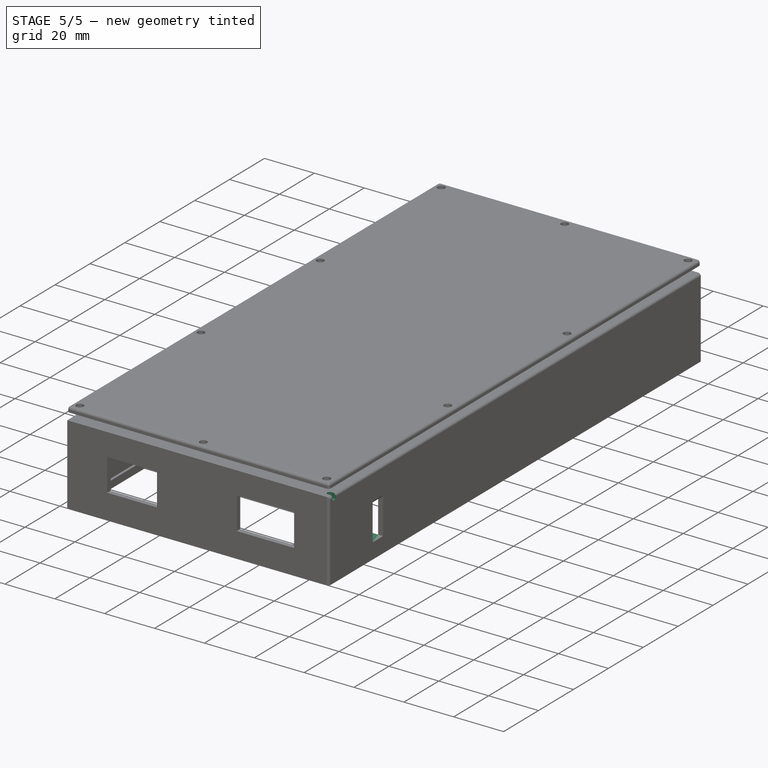
[diagram: stage 5 of 5 — iso view after this stage's code; geometry added in this stage tinted green]
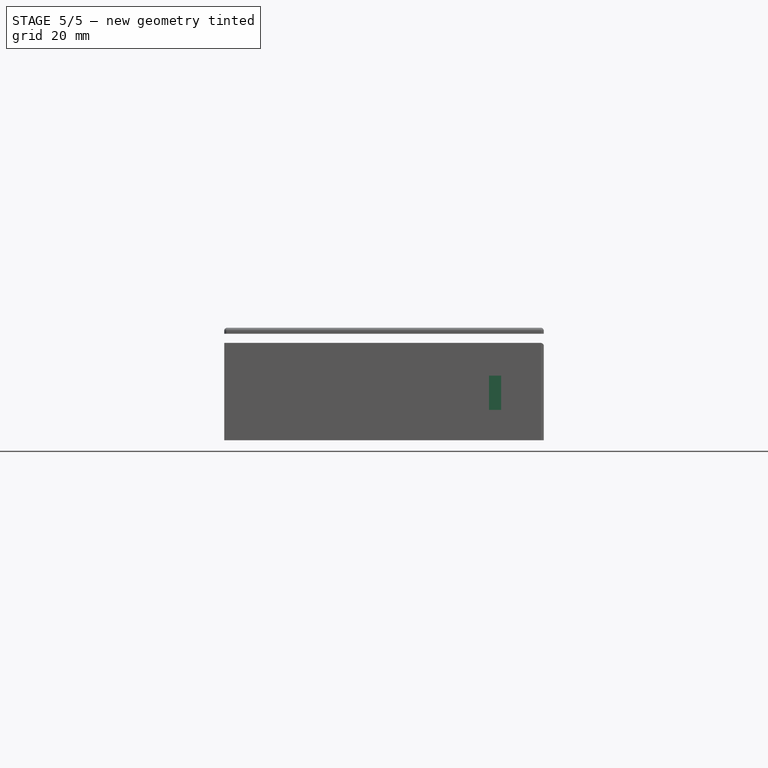
[diagram: stage 5 of 5 — front view after this stage's code; geometry added in this stage tinted green]
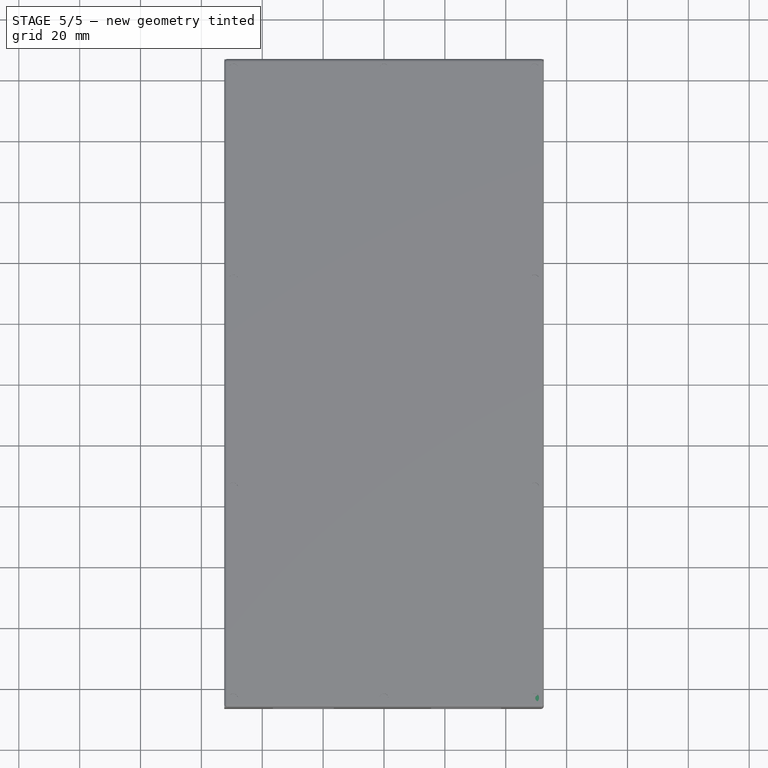
[diagram: stage 5 of 5 — top view after this stage's code; geometry added in this stage tinted green]
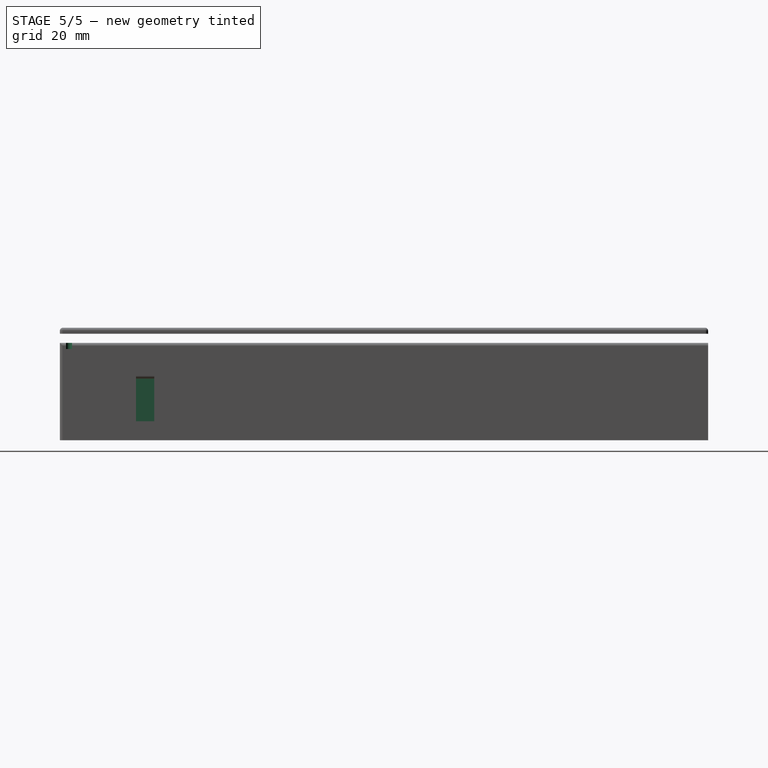
[diagram: stage 5 of 5 — right view after this stage's code; geometry added in this stage tinted green]
FEATURE [Sketcher::SketchObject] Sketch009
  ArcFitTolerance = 0
  AttachmentSupport = -> [Pocket004]
  ExternalGeometry = -> [Pocket004]
  FullyConstrained = true
  MakeInternals = false
  MapMode = 5
  Placement = pos=(50.5,0,0) rot=(0.57735,-0.57735,-0.57735;2.0944rad)
  sketch-geometry (8):
    g0: LineSegment StartX=75.5 StartY=6.25 StartZ=0 EndX=75.5 EndY=5.25 EndZ=0
    g1: LineSegment StartX=75.5 StartY=5.25 StartZ=0 EndX=82.5 EndY=5.25 EndZ=0
    g2: LineSegment StartX=82.5 StartY=5.25 StartZ=0 EndX=82.5 EndY=21.25 EndZ=0
    g3: LineSegment StartX=82.5 StartY=21.25 StartZ=0 EndX=75.5 EndY=21.25 EndZ=0
    g4: LineSegment StartX=75.5 StartY=21.25 StartZ=0 EndX=75.5 EndY=20.25 EndZ=0
    g5: LineSegment StartX=75.5 StartY=20.25 StartZ=0 EndX=81.5 EndY=20.25 EndZ=0
    g6: LineSegment StartX=81.5 StartY=20.25 StartZ=0 EndX=81.5 EndY=6.25 EndZ=0
    g7: LineSegment StartX=81.5 StartY=6.25 StartZ=0 EndX=75.5 EndY=6.25 EndZ=0
  constraints (20):
    c: Coincident(g-3,g0)
    c: Vertical(g0)
    c: Coincident(g0,g1)
    c: Horizontal(g1)
    c: Coincident(g1,g2)
    c: Vertical(g2)
    c: Coincident(g2,g3)
    c: Horizontal(g3)
    c: Coincident(g3,g4)
    c: Coincident(g4,g-4)
    c: Vertical(g4)
    c: Coincident(g4,g5)
    c: Coincident(g5,g-4)
    c: Coincident(g5,g6)
    c: Coincident(g6,g-3)
    c: Coincident(g6,g7)
    c: Coincident(g7,g0)
    c: Equal(g0,g4)
    c: DistanceY(g0,g0) = 1
    c: DistanceX(g6,g1) = 1
FEATURE [PartDesign::Pad] Pad004
  AlongSketchNormal = false
  BaseFeature = -> Pocket004
  Direction = (-1,0,0)
  Length = 16
  Length2 = 100
  Profile = -> Sketch009
  Suppressed = false
  Type = 0
FEATURE [Sketcher::SketchObject] Sketch010
  ArcFitTolerance = 0
  AttachmentSupport = -> [Pad004]
  ExternalGeometry = -> [Pad004]
  FullyConstrained = true
  MakeInternals = false
  MapMode = 5
  Placement = pos=(0,-81.5,0) rot=(0,0.707107,0.707107;3.14159rad)
  sketch-geometry (4):
    g0: LineSegment StartX=-34.5 StartY=20.25 StartZ=0 EndX=-36 EndY=20.25 EndZ=0
    g1: LineSegment StartX=-36 StartY=20.25 StartZ=0 EndX=-36 EndY=6.25 EndZ=0
    g2: LineSegment StartX=-36 StartY=6.25 StartZ=0 EndX=-34.5 EndY=6.25 EndZ=0
    g3: LineSegment StartX=-34.5 StartY=6.25 StartZ=0 EndX=-34.5 EndY=20.25 EndZ=0
  constraints (10):
    c: Coincident(g0,g1)
    c: Coincident(g1,g2)
    c: Coincident(g2,g3)
    c: Coincident(g3,g0)
    c: Horizontal(g0)
    c: Horizontal(g2)
    c: Vertical(g1)
    c: Coincident(g0,g-3)
    c: Coincident(g2,g-3)
    c: DistanceX(g0,g0) = 1.5
FEATURE [PartDesign::Pad] Pad005
  AlongSketchNormal = false
  BaseFeature = -> Pad004
  Direction = (0,1,-2e-16)
  Length = 6
  Length2 = 100
  Profile = -> Sketch010
  Refine = true
  Suppressed = false
  Type = 0
FEATURE [PartDesign::Fillet] Fillet005
  Base = -> Pad005 [Edge290,Edge291,Edge294,Edge299]
  BaseFeature = -> Pad005
  Radius = 1
  SupportTransform = false
  Suppressed = false
  UseAllEdges = false
FEATURE [Sketcher::SketchObject] Sketch012
  ArcFitTolerance = 0
  AttachmentSupport = -> [Fillet005]
  ExternalGeometry = -> [Fillet005]
  FullyConstrained = true
  MakeInternals = false
  MapMode = 5
  Placement = pos=(0,0,30) rot=(1,0,0;3.14159rad)
  sketch-geometry (4):
    g0: ArcOfCircle CenterX=42.5 CenterY=23 CenterZ=0 NormalX=0 NormalY=0 NormalZ=1 AngleXU=0 Radius=1 StartAngle=1.5708 EndAngle=4.71239
    g1: ArcOfCircle CenterX=47.5 CenterY=23 CenterZ=0 NormalX=0 NormalY=0 NormalZ=1 AngleXU=0 Radius=1 StartAngle=4.71239 EndAngle=7.85398
    g2: LineSegment StartX=42.5 StartY=22 StartZ=0 EndX=47.5 EndY=22 EndZ=0
    g3: LineSegment StartX=47.5 StartY=24 StartZ=0 EndX=42.5 EndY=24 EndZ=0
  constraints (10):
    c: Tangent(g0,g2) = -1.5708
    c: Tangent(g2,g1) = -1.5708
    c: Tangent(g1,g3) = -1.5708
    c: Tangent(g3,g0) = -1.5708
    c: Equal(g0,g1)
    c: Horizontal(g1,g0)
    c: Radius(g0) = 1
    c: DistanceX(g0,g1) = 5
    c: Horizontal(g0,g-5)
    c: DistanceX(g-5,g0) = 3.5
FEATURE [PartDesign::Pocket] Pocket005
  BaseFeature = -> Fillet005
  Direction = (1,1,1)
  Length = 5
  Length2 = 100
  Profile = -> Sketch012
  Suppressed = false
  Type = 0
FEATURE [PartDesign::Hole] Hole
  BaseFeature = -> Pocket005
  CustomThreadClearance = 0
  Depth = 25
  DepthType = 0
  Diameter = 2.9
  DrillForDepth = false
  DrillPoint = 1
  DrillPointAngle = 118
  HoleCutCountersinkAngle = 90
  HoleCutCustomValues = false
  HoleCutDepth = 0
  HoleCutDiameter = 6.1
  HoleCutType = 0
  ModelThread = false
  Profile = -> Pocket005 [Face1]
  Suppressed = false
  Tapered = false
  TaperedAngle = 90
  ThreadClass = 0
  ThreadDepth = 25
  ThreadDepthType = 0
  ThreadDirection = 0
  ThreadFit = 0
  ThreadSize = 8
  ThreadType = 1
  Threaded = false
  UseCustomThreadClearance = false
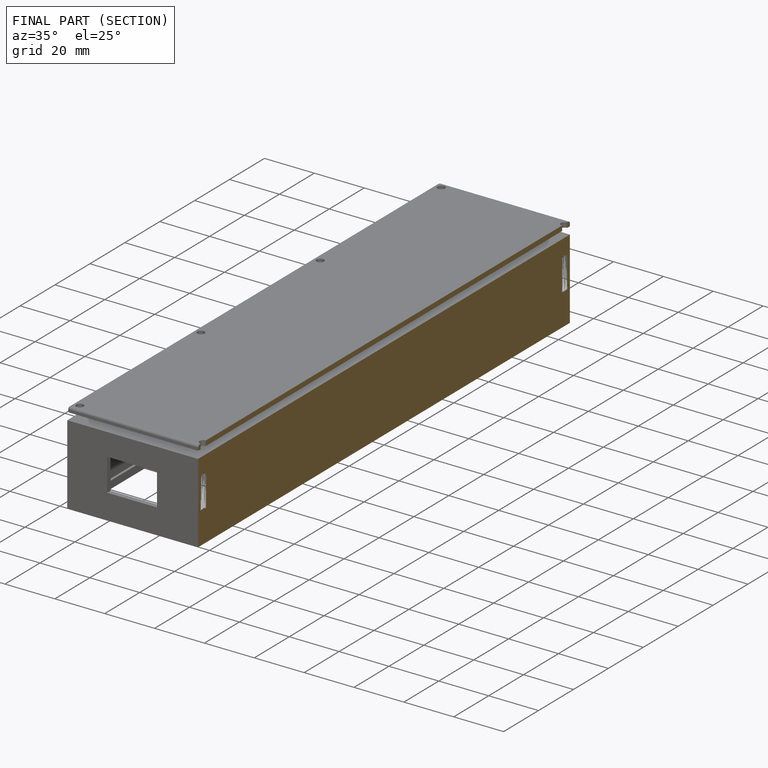
[diagram: finished part — half-section view (interior)]
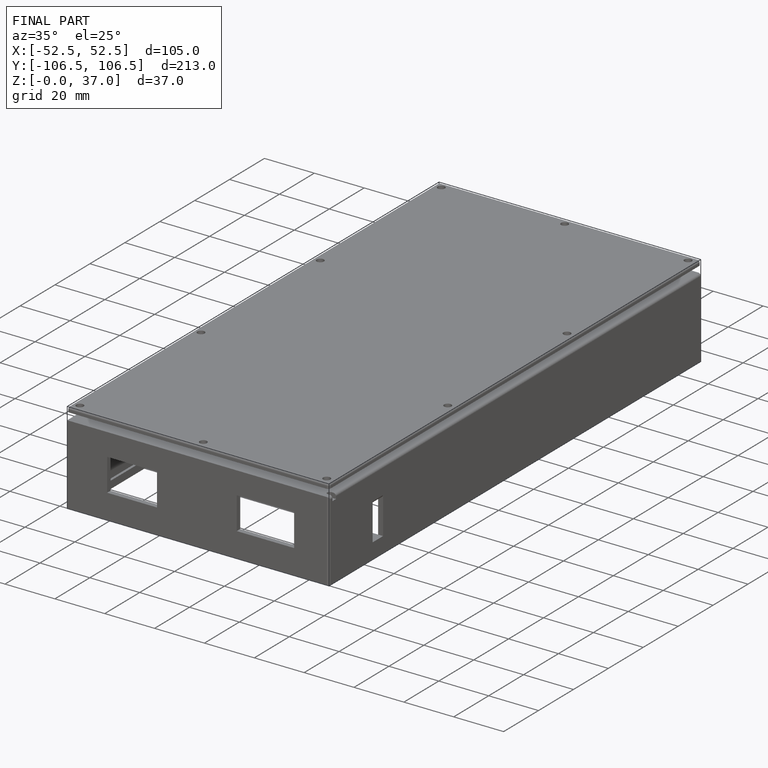
[diagram: finished part — iso view with bounding-box wireframe]
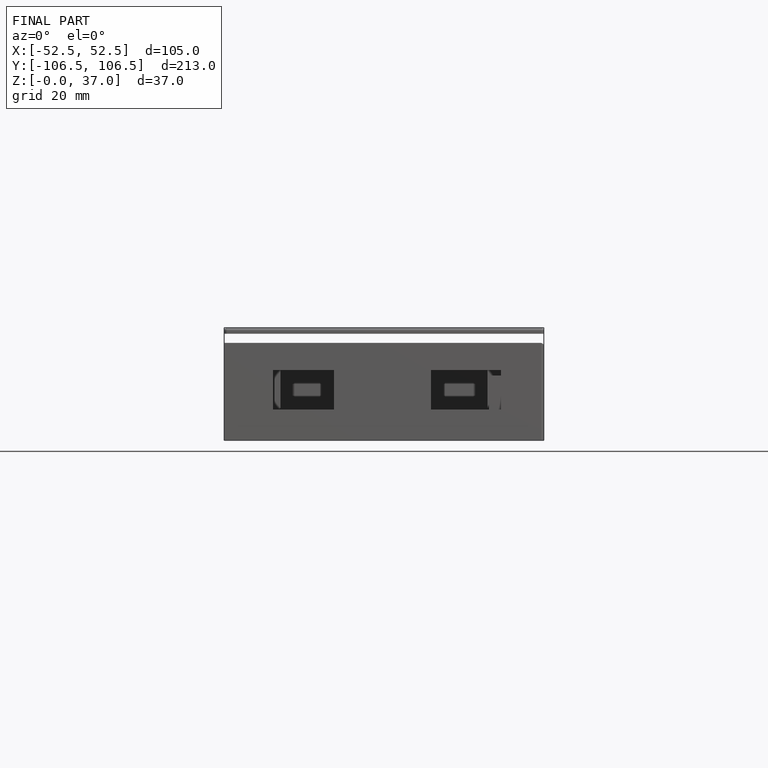
[diagram: finished part — front view with bounding-box wireframe]
